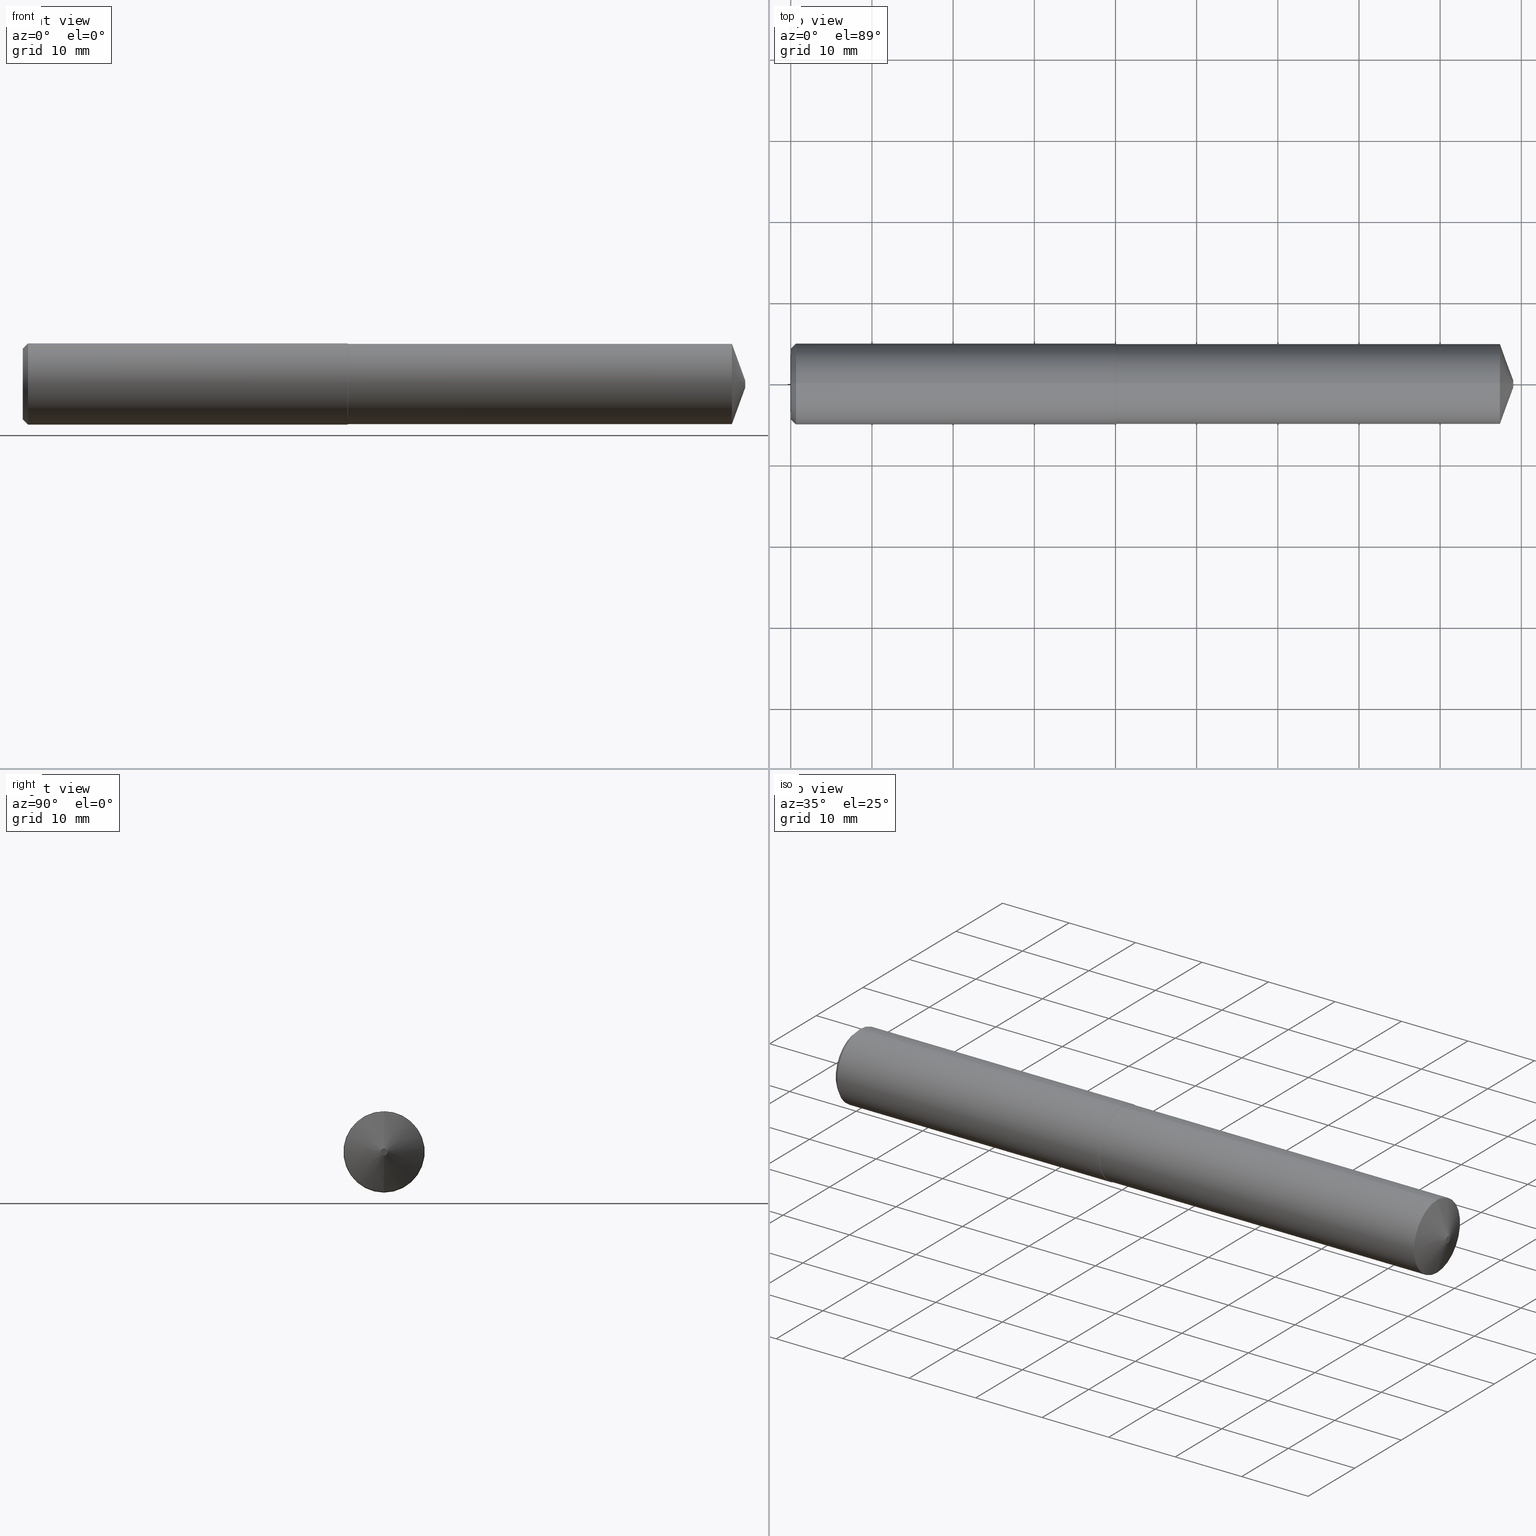
[diagram: canonical four-view strip — front | top / right | iso, engineering-drawing reading convention]
A machine part, canonical four-view strip (front | top / right | iso — engineering-drawing reading convention). The complete STEP part file that produces these views, byte-faithful:
ISO-10303-21;
HEADER;
FILE_DESCRIPTION (( 'STEP AP203' ),
    '1' );
FILE_NAME ('407004-DFX3-389A.STEP',
    '2024-10-02T19:29:08',
    ( '' ),
    ( '' ),
    'SwSTEP 2.0',
    'SolidWorks 2024',
    '' );
FILE_SCHEMA (( 'CONFIG_CONTROL_DESIGN' ));
ENDSEC;

DATA;
#1 = EDGE_CURVE ( 'NONE', #321, #27, #358, .T. ) ;
#2 = ORIENTED_EDGE ( 'NONE', *, *, #1, .F. ) ;
#3 = AXIS2_PLACEMENT_3D ( 'NONE', #169, #348, #143 ) ;
#4 = ORIENTED_EDGE ( 'NONE', *, *, #150, .T. ) ;
#5 = ORIENTED_EDGE ( 'NONE', *, *, #82, .T. ) ;
#6 = ADVANCED_FACE ( 'NONE', ( #39 ), #352, .T. ) ;
#7 = COORDINATED_UNIVERSAL_TIME_OFFSET ( 8, 0, .BEHIND. ) ;
#8 = VERTEX_POINT ( 'NONE', #329 ) ;
#9 = CC_DESIGN_PERSON_AND_ORGANIZATION_ASSIGNMENT ( #106, #277, ( #228 ) ) ;
#10 = LOCAL_TIME ( 12, 29, 8.000000000000000000, #333 ) ;
#11 = UNCERTAINTY_MEASURE_WITH_UNIT (LENGTH_MEASURE( 1.000000000000000082E-05 ), #231, 'distance_accuracy_value', 'NONE');
#12 = DIRECTION ( 'NONE',  ( 1.000000000000000000, -0.000000000000000000, -0.000000000000000000 ) ) ;
#13 = DATE_TIME_ROLE ( 'creation_date' ) ;
#14 = DIRECTION ( 'NONE',  ( -1.000000000000000000, 0.000000000000000000, 0.000000000000000000 ) ) ;
#15 = DATE_AND_TIME ( #71, #198 ) ;
#16 = LINE ( 'NONE', #17, #334 ) ;
#17 = CARTESIAN_POINT ( 'NONE',  ( -0.03808593750000075634, 2.410722045565656686E-17, 0.1968503937007874682 ) ) ;
#18 = CARTESIAN_POINT ( 'NONE',  ( -0.03808593750000075634, 0.000000000000000000, 0.000000000000000000 ) ) ;
#19 = CC_DESIGN_PERSON_AND_ORGANIZATION_ASSIGNMENT ( #330, #295, ( #251 ) ) ;
#20 = CARTESIAN_POINT ( 'NONE',  ( 0.02500000000000000139, 0.000000000000000000, -0.1968503937007873850 ) ) ;
#21 = AXIS2_PLACEMENT_3D ( 'NONE', #269, #125, #213 ) ;
#22 = AXIS2_PLACEMENT_3D ( 'NONE', #18, #196, #310 ) ;
#23 = VERTEX_POINT ( 'NONE', #323 ) ;
#24 = DIRECTION ( 'NONE',  ( 0.000000000000000000, 0.000000000000000000, -1.000000000000000000 ) ) ;
#25 = DIRECTION ( 'NONE',  ( -0.3420201433256665480, 1.150791560227851256E-16, -0.9396926207859092051 ) ) ;
#26 = EDGE_CURVE ( 'NONE', #291, #27, #311, .T. ) ;
#27 = VERTEX_POINT ( 'NONE', #73 ) ;
#28 = DIRECTION ( 'NONE',  ( 0.7071067811865474617, 8.659560562354934091E-17, 0.7071067811865475727 ) ) ;
#29 = ORIENTED_EDGE ( 'NONE', *, *, #102, .F. ) ;
#30 = APPROVAL_PERSON_ORGANIZATION ( #31, #216, #223 ) ;
#31 = PERSON_AND_ORGANIZATION ( #65, #36 ) ;
#32 = EDGE_LOOP ( 'NONE', ( #188, #378, #5, #170 ) ) ;
#33 = EDGE_CURVE ( 'NONE', #205, #8, #122, .T. ) ;
#34 = ORIENTED_EDGE ( 'NONE', *, *, #45, .T. ) ;
#35 = ORIENTED_EDGE ( 'NONE', *, *, #187, .T. ) ;
#36 = ORGANIZATION ( 'UNSPECIFIED', 'UNSPECIFIED', '' ) ;
#37 = ORIENTED_EDGE ( 'NONE', *, *, #338, .F. ) ;
#38 = MECHANICAL_CONTEXT ( 'NONE', #237, 'mechanical' ) ;
#39 = FACE_OUTER_BOUND ( 'NONE', #298, .T. ) ;
#40 = APPROVAL ( #99, 'UNSPECIFIED' ) ;
#41 = CARTESIAN_POINT ( 'NONE',  ( 0.000000000000000000, 0.000000000000000000, 0.000000000000000000 ) ) ;
#42 = APPROVAL_DATE_TIME ( #336, #216 ) ;
#43 = SECURITY_CLASSIFICATION ( '', '', #191 ) ;
#44 = DIRECTION ( 'NONE',  ( 0.000000000000000000, 0.000000000000000000, -1.000000000000000000 ) ) ;
#45 = EDGE_CURVE ( 'NONE', #8, #89, #69, .T. ) ;
#46 = CARTESIAN_POINT ( 'NONE',  ( 0.02500000000000000139, 0.000000000000000000, -0.1968503937007873850 ) ) ;
#47 = DIRECTION ( 'NONE',  ( 1.000000000000000000, -0.000000000000000000, -0.000000000000000000 ) ) ;
#48 = APPROVAL_PERSON_ORGANIZATION ( #180, #253, #215 ) ;
#49 = CARTESIAN_POINT ( 'NONE',  ( 3.503937007874015741, 1.298125607096199845E-17, -0.01750000000000043535 ) ) ;
#50 = EDGE_CURVE ( 'NONE', #96, #27, #190, .T. ) ;
#51 = LINE ( 'NONE', #344, #166 ) ;
#52 = DIRECTION ( 'NONE',  ( 1.000000000000000000, 0.000000000000000000, 0.000000000000000000 ) ) ;
#53 = ORIENTED_EDGE ( 'NONE', *, *, #150, .F. ) ;
#54 = CARTESIAN_POINT ( 'NONE',  ( 1.574803149606299302, 0.000000000000000000, 0.1968503937007875793 ) ) ;
#55 = CIRCLE ( 'NONE', #267, 0.1968503937007875793 ) ;
#56 = DIRECTION ( 'NONE',  ( 0.000000000000000000, 0.000000000000000000, -1.000000000000000000 ) ) ;
#57 = ORIENTED_EDGE ( 'NONE', *, *, #50, .T. ) ;
#58 = CARTESIAN_POINT ( 'NONE',  ( 3.503937007874015741, 0.000000000000000000, 0.000000000000000000 ) ) ;
#59 = VERTEX_POINT ( 'NONE', #303 ) ;
#60 = VECTOR ( 'NONE', #164, 39.37007874015748143 ) ;
#61 = EDGE_CURVE ( 'NONE', #23, #59, #208, .T. ) ;
#62 = LOCAL_TIME ( 12, 29, 8.000000000000000000, #78 ) ;
#63 = ORIENTED_EDGE ( 'NONE', *, *, #50, .F. ) ;
#64 = CC_DESIGN_DATE_AND_TIME_ASSIGNMENT ( #327, #239, ( #43 ) ) ;
#65 = PERSON ( 'UNSPECIFIED', 'UNSPECIFIED', 'UNSPECIFIED', ('UNSPECIFIED'), ('UNSPECIFIED'), ('UNSPECIFIED') ) ;
#66 = DIRECTION ( 'NONE',  ( 1.000000000000000000, -0.000000000000000000, -0.000000000000000000 ) ) ;
#67 = PRODUCT_DEFINITION_SHAPE ( 'NONE', 'NONE',  #228 ) ;
#68 = DIRECTION ( 'NONE',  ( 1.000000000000000000, -0.000000000000000000, -0.000000000000000000 ) ) ;
#69 = CIRCLE ( 'NONE', #21, 0.1945000000000004503 ) ;
#70 =( GEOMETRIC_REPRESENTATION_CONTEXT ( 3 ) GLOBAL_UNCERTAINTY_ASSIGNED_CONTEXT ( ( #11 ) ) GLOBAL_UNIT_ASSIGNED_CONTEXT ( ( #231, #285, #138 ) ) REPRESENTATION_CONTEXT ( 'NONE', 'WORKASPACE' ) );
#71 = CALENDAR_DATE ( 2024, 2, 10 ) ;
#72 = CARTESIAN_POINT ( 'NONE',  ( 1.574803149606299302, 0.000000000000000000, 0.000000000000000000 ) ) ;
#73 = CARTESIAN_POINT ( 'NONE',  ( 1.574803149606299302, 2.410722045565658227E-17, -0.1968503937007875793 ) ) ;
#74 = APPROVAL_STATUS ( 'not_yet_approved' ) ;
#75 = DIRECTION ( 'NONE',  ( 0.000000000000000000, 0.000000000000000000, -1.000000000000000000 ) ) ;
#76 = EDGE_CURVE ( 'NONE', #205, #261, #151, .T. ) ;
#77 = AXIS2_PLACEMENT_3D ( 'NONE', #72, #266, #100 ) ;
#78 = COORDINATED_UNIVERSAL_TIME_OFFSET ( 8, 0, .BEHIND. ) ;
#79 = APPLICATION_CONTEXT ( 'configuration controlled 3d designs of mechanical parts and assemblies' ) ;
#80 = DIRECTION ( 'NONE',  ( 0.7071067811865474617, 0.000000000000000000, -0.7071067811865475727 ) ) ;
#81 = CARTESIAN_POINT ( 'NONE',  ( 0.02500000000000000139, 0.000000000000000000, 0.000000000000000000 ) ) ;
#82 = EDGE_CURVE ( 'NONE', #23, #321, #225, .T. ) ;
#83 = DIRECTION ( 'NONE',  ( 0.000000000000000000, 0.000000000000000000, -1.000000000000000000 ) ) ;
#84 = AXIS2_PLACEMENT_3D ( 'NONE', #290, #258, #115 ) ;
#85 = FACE_OUTER_BOUND ( 'NONE', #259, .T. ) ;
#86 = CARTESIAN_POINT ( 'NONE',  ( 0.000000000000000000, 0.000000000000000000, 0.000000000000000000 ) ) ;
#87 = ORIENTED_EDGE ( 'NONE', *, *, #33, .T. ) ;
#88 = FACE_OUTER_BOUND ( 'NONE', #349, .T. ) ;
#89 = VERTEX_POINT ( 'NONE', #339 ) ;
#90 = CYLINDRICAL_SURFACE ( 'NONE', #84, 0.1945000000000003115 ) ;
#91 = AXIS2_PLACEMENT_3D ( 'NONE', #279, #12, #131 ) ;
#92 = CARTESIAN_POINT ( 'NONE',  ( 1.577153543307086903, 0.000000000000000000, 0.1945000000000001728 ) ) ;
#93 = EDGE_CURVE ( 'NONE', #89, #8, #179, .T. ) ;
#94 = ORIENTED_EDGE ( 'NONE', *, *, #194, .T. ) ;
#95 = ORIENTED_EDGE ( 'NONE', *, *, #354, .T. ) ;
#96 = VERTEX_POINT ( 'NONE', #193 ) ;
#97 = DIRECTION ( 'NONE',  ( -0.3420201433256665480, 0.000000000000000000, 0.9396926207859092051 ) ) ;
#98 = VECTOR ( 'NONE', #97, 39.37007874015748143 ) ;
#99 = APPROVAL_STATUS ( 'not_yet_approved' ) ;
#100 = DIRECTION ( 'NONE',  ( 0.000000000000000000, 0.000000000000000000, -1.000000000000000000 ) ) ;
#101 = CALENDAR_DATE ( 2024, 2, 10 ) ;
#102 = EDGE_CURVE ( 'NONE', #96, #89, #249, .T. ) ;
#103 = CARTESIAN_POINT ( 'NONE',  ( 1.577153543307086903, 0.000000000000000000, 0.000000000000000000 ) ) ;
#104 = PERSON_AND_ORGANIZATION ( #65, #36 ) ;
#105 = CARTESIAN_POINT ( 'NONE',  ( -0.03808593750000075634, 0.000000000000000000, -0.1945000000000003115 ) ) ;
#106 = PERSON_AND_ORGANIZATION ( #65, #36 ) ;
#107 = CARTESIAN_POINT ( 'NONE',  ( 3.061616997868404646E-19, 0.1718503937007873628, 0.000000000000000000 ) ) ;
#108 = CYLINDRICAL_SURFACE ( 'NONE', #22, 0.1968503937007874682 ) ;
#109 = CARTESIAN_POINT ( 'NONE',  ( 0.02500000000000000139, 0.000000000000000000, 0.000000000000000000 ) ) ;
#110 = VECTOR ( 'NONE', #185, 39.37007874015748143 ) ;
#111 = CONICAL_SURFACE ( 'NONE', #128, 0.01750000000000043535, 1.221730476396033049 ) ;
#112 = APPLICATION_PROTOCOL_DEFINITION ( 'international standard', 'config_control_design', 1994, #237 ) ;
#113 = ORIENTED_EDGE ( 'NONE', *, *, #93, .F. ) ;
#114 = ORIENTED_EDGE ( 'NONE', *, *, #250, .T. ) ;
#115 = DIRECTION ( 'NONE',  ( 0.000000000000000000, 0.000000000000000000, -1.000000000000000000 ) ) ;
#116 = AXIS2_PLACEMENT_3D ( 'NONE', #245, #218, #362 ) ;
#117 = APPROVAL_PERSON_ORGANIZATION ( #244, #40, #246 ) ;
#118 = ADVANCED_FACE ( 'NONE', ( #331 ), #281, .T. ) ;
#119 = LENGTH_MEASURE_WITH_UNIT ( LENGTH_MEASURE( 0.02539999999999999897 ), #140 );
#120 = EDGE_LOOP ( 'NONE', ( #114, #264, #113, #29 ) ) ;
#121 = AXIS2_PLACEMENT_3D ( 'NONE', #81, #247, #75 ) ;
#122 = LINE ( 'NONE', #355, #98 ) ;
#123 = CIRCLE ( 'NONE', #325, 0.1968503937007873850 ) ;
#124 = ORIENTED_EDGE ( 'NONE', *, *, #157, .T. ) ;
#125 = DIRECTION ( 'NONE',  ( 1.000000000000000000, -0.000000000000000000, -0.000000000000000000 ) ) ;
#126 = PERSON_AND_ORGANIZATION_ROLE ( 'classification_officer' ) ;
#127 = ORIENTED_EDGE ( 'NONE', *, *, #102, .T. ) ;
#128 = AXIS2_PLACEMENT_3D ( 'NONE', #58, #142, #177 ) ;
#129 = DIRECTION ( 'NONE',  ( 1.000000000000000000, 0.000000000000000000, -0.000000000000000000 ) ) ;
#130 = APPROVAL_STATUS ( 'not_yet_approved' ) ;
#131 = DIRECTION ( 'NONE',  ( 0.000000000000000000, 0.000000000000000000, -1.000000000000000000 ) ) ;
#132 = COORDINATED_UNIVERSAL_TIME_OFFSET ( 8, 0, .BEHIND. ) ;
#133 = DIRECTION ( 'NONE',  ( 1.000000000000000000, -0.000000000000000000, -0.000000000000000000 ) ) ;
#134 = CIRCLE ( 'NONE', #91, 0.1945000000000001728 ) ;
#135 = AXIS2_PLACEMENT_3D ( 'NONE', #252, #163, #199 ) ;
#136 = FACE_OUTER_BOUND ( 'NONE', #296, .T. ) ;
#137 = DIRECTION ( 'NONE',  ( 1.000000000000000000, -0.000000000000000000, -0.000000000000000000 ) ) ;
#138 =( NAMED_UNIT ( * ) SI_UNIT ( $, .STERADIAN. ) SOLID_ANGLE_UNIT ( ) );
#139 = ADVANCED_FACE ( 'NONE', ( #308 ), #274, .T. ) ;
#140 =( LENGTH_UNIT ( ) NAMED_UNIT ( * ) SI_UNIT ( $, .METRE. ) );
#141 = ORIENTED_EDGE ( 'NONE', *, *, #61, .F. ) ;
#142 = DIRECTION ( 'NONE',  ( -1.000000000000000000, 0.000000000000000000, 0.000000000000000000 ) ) ;
#143 = DIRECTION ( 'NONE',  ( 0.000000000000000000, 0.000000000000000000, -1.000000000000000000 ) ) ;
#144 = ORIENTED_EDGE ( 'NONE', *, *, #270, .F. ) ;
#145 = EDGE_CURVE ( 'NONE', #261, #205, #227, .T. ) ;
#146 = CARTESIAN_POINT ( 'NONE',  ( 1.577153543307086903, 2.381938024341605034E-17, 0.1945000000000001728 ) ) ;
#147 = ORIENTED_EDGE ( 'NONE', *, *, #278, .F. ) ;
#148 = CALENDAR_DATE ( 2024, 2, 10 ) ;
#149 = ORIENTED_EDGE ( 'NONE', *, *, #250, .F. ) ;
#150 = EDGE_CURVE ( 'NONE', #321, #217, #287, .T. ) ;
#151 = CIRCLE ( 'NONE', #341, 0.01750000000000043535 ) ;
#152 = ORIENTED_EDGE ( 'NONE', *, *, #194, .F. ) ;
#153 = VECTOR ( 'NONE', #175, 39.37007874015748143 ) ;
#154 = DIRECTION ( 'NONE',  ( 0.000000000000000000, 0.000000000000000000, -1.000000000000000000 ) ) ;
#155 = APPLICATION_PROTOCOL_DEFINITION ( 'international standard', 'config_control_design', 1994, #79 ) ;
#156 = DIRECTION ( 'NONE',  ( -0.7071067811865627828, 8.659560562354743039E-17, -0.7071067811865320296 ) ) ;
#157 = EDGE_CURVE ( 'NONE', #217, #291, #16, .T. ) ;
#158 = DIRECTION ( 'NONE',  ( 0.000000000000000000, 0.000000000000000000, -1.000000000000000000 ) ) ;
#159 = AXIS2_PLACEMENT_3D ( 'NONE', #360, #129, #335 ) ;
#160 = CONICAL_SURFACE ( 'NONE', #316, 0.1968503937007873850, 0.7853981633974483900 ) ;
#161 = CC_DESIGN_PERSON_AND_ORGANIZATION_ASSIGNMENT ( #189, #271, ( #312 ) ) ;
#162 = CC_DESIGN_SECURITY_CLASSIFICATION ( #43, ( #312 ) ) ;
#163 = DIRECTION ( 'NONE',  ( -1.000000000000000000, 0.000000000000000000, 0.000000000000000000 ) ) ;
#164 = DIRECTION ( 'NONE',  ( 1.000000000000000000, -0.000000000000000000, -0.000000000000000000 ) ) ;
#165 = CARTESIAN_POINT ( 'NONE',  ( 1.574803149606299302, 0.000000000000000000, 0.000000000000000000 ) ) ;
#166 = VECTOR ( 'NONE', #25, 39.37007874015748143 ) ;
#167 = FACE_OUTER_BOUND ( 'NONE', #376, .T. ) ;
#168 = CARTESIAN_POINT ( 'NONE',  ( 0.02500000000000000139, 2.410722045565656070E-17, 0.1968503937007873850 ) ) ;
#169 = CARTESIAN_POINT ( 'NONE',  ( -0.03808593750000075634, 0.000000000000000000, 0.000000000000000000 ) ) ;
#170 = ORIENTED_EDGE ( 'NONE', *, *, #262, .F. ) ;
#171 = AXIS2_PLACEMENT_3D ( 'NONE', #103, #137, #44 ) ;
#172 = VECTOR ( 'NONE', #28, 39.37007874015748143 ) ;
#173 = LINE ( 'NONE', #92, #305 ) ;
#174 = MANIFOLD_SOLID_BREP ( 'Body', #365 ) ;
#175 = DIRECTION ( 'NONE',  ( 1.000000000000000000, -0.000000000000000000, -0.000000000000000000 ) ) ;
#176 = DIMENSIONAL_EXPONENTS ( 1.000000000000000000, 0.000000000000000000, 0.000000000000000000, 0.000000000000000000, 0.000000000000000000, 0.000000000000000000, 0.000000000000000000 ) ;
#177 = DIRECTION ( 'NONE',  ( 0.000000000000000000, 0.000000000000000000, 1.000000000000000000 ) ) ;
#178 = ORIENTED_EDGE ( 'NONE', *, *, #26, .T. ) ;
#179 = CIRCLE ( 'NONE', #116, 0.1945000000000004503 ) ;
#180 = PERSON_AND_ORGANIZATION ( #65, #36 ) ;
#181 = EDGE_LOOP ( 'NONE', ( #141, #300 ) ) ;
#182 = ORIENTED_EDGE ( 'NONE', *, *, #76, .T. ) ;
#183 = ADVANCED_FACE ( 'NONE', ( #167 ), #313, .T. ) ;
#184 = ORIENTED_EDGE ( 'NONE', *, *, #157, .F. ) ;
#185 = DIRECTION ( 'NONE',  ( 1.000000000000000000, -0.000000000000000000, -0.000000000000000000 ) ) ;
#186 = AXIS2_PLACEMENT_3D ( 'NONE', #372, #345, #56 ) ;
#187 = EDGE_CURVE ( 'NONE', #356, #96, #203, .T. ) ;
#188 = ORIENTED_EDGE ( 'NONE', *, *, #354, .F. ) ;
#189 = PERSON_AND_ORGANIZATION ( #65, #36 ) ;
#190 = LINE ( 'NONE', #324, #240 ) ;
#191 = SECURITY_CLASSIFICATION_LEVEL ( 'unclassified' ) ;
#192 = DIRECTION ( 'NONE',  ( 0.000000000000000000, 0.000000000000000000, 1.000000000000000000 ) ) ;
#193 = CARTESIAN_POINT ( 'NONE',  ( 1.577153543307086903, 0.000000000000000000, -0.1945000000000001728 ) ) ;
#194 = EDGE_CURVE ( 'NONE', #27, #291, #55, .T. ) ;
#195 = DIRECTION ( 'NONE',  ( -1.000000000000000000, 0.000000000000000000, 0.000000000000000000 ) ) ;
#196 = DIRECTION ( 'NONE',  ( 1.000000000000000000, -0.000000000000000000, -0.000000000000000000 ) ) ;
#197 = AXIS2_PLACEMENT_3D ( 'NONE', #107, #14, #220 ) ;
#198 = LOCAL_TIME ( 12, 29, 8.000000000000000000, #7 ) ;
#199 = DIRECTION ( 'NONE',  ( 0.000000000000000000, 0.000000000000000000, 1.000000000000000000 ) ) ;
#200 = ADVANCED_FACE ( 'NONE', ( #85 ), #248, .T. ) ;
#201 = DIRECTION ( 'NONE',  ( 0.000000000000000000, 0.000000000000000000, 1.000000000000000000 ) ) ;
#202 = CYLINDRICAL_SURFACE ( 'NONE', #3, 0.1968503937007874682 ) ;
#203 = CIRCLE ( 'NONE', #171, 0.1945000000000001728 ) ;
#204 = AXIS2_PLACEMENT_3D ( 'NONE', #86, #201, #52 ) ;
#205 = VERTEX_POINT ( 'NONE', #282 ) ;
#206 = CARTESIAN_POINT ( 'NONE',  ( -0.03808593750000075634, 2.381938024341605650E-17, 0.1945000000000003115 ) ) ;
#207 = CYLINDRICAL_SURFACE ( 'NONE', #186, 0.1945000000000003115 ) ;
#208 = CIRCLE ( 'NONE', #357, 0.1718503937007873628 ) ;
#209 = CC_DESIGN_APPROVAL ( #40, ( #228 ) ) ;
#210 = ORIENTED_EDGE ( 'NONE', *, *, #187, .F. ) ;
#211 = EDGE_LOOP ( 'NONE', ( #238, #241, #351, #212 ) ) ;
#212 = ORIENTED_EDGE ( 'NONE', *, *, #33, .F. ) ;
#213 = DIRECTION ( 'NONE',  ( 0.000000000000000000, 0.000000000000000000, -1.000000000000000000 ) ) ;
#214 = AXIS2_PLACEMENT_3D ( 'NONE', #370, #230, #24 ) ;
#215 = APPROVAL_ROLE ( '' ) ;
#216 = APPROVAL ( #74, 'UNSPECIFIED' ) ;
#217 = VERTEX_POINT ( 'NONE', #168 ) ;
#218 = DIRECTION ( 'NONE',  ( 1.000000000000000000, -0.000000000000000000, -0.000000000000000000 ) ) ;
#219 = CALENDAR_DATE ( 2024, 2, 10 ) ;
#220 = DIRECTION ( 'NONE',  ( 0.000000000000000000, 0.000000000000000000, 1.000000000000000000 ) ) ;
#221 = AXIS2_PLACEMENT_3D ( 'NONE', #309, #195, #284 ) ;
#222 = ADVANCED_FACE ( 'NONE', ( #243 ), #275, .T. ) ;
#223 = APPROVAL_ROLE ( '' ) ;
#224 = DIRECTION ( 'NONE',  ( 1.000000000000000000, -0.000000000000000000, -0.000000000000000000 ) ) ;
#225 = LINE ( 'NONE', #46, #283 ) ;
#226 = DIRECTION ( 'NONE',  ( 1.000000000000000000, -0.000000000000000000, -0.000000000000000000 ) ) ;
#227 = CIRCLE ( 'NONE', #320, 0.01750000000000043535 ) ;
#228 = PRODUCT_DEFINITION ( 'UNKNOWN', '', #312, #322 ) ;
#229 = FACE_OUTER_BOUND ( 'NONE', #32, .T. ) ;
#230 = DIRECTION ( 'NONE',  ( 1.000000000000000000, -0.000000000000000000, -0.000000000000000000 ) ) ;
#231 =( CONVERSION_BASED_UNIT ( 'INCH', #119 ) LENGTH_UNIT ( ) NAMED_UNIT ( #176 ) );
#232 = CARTESIAN_POINT ( 'NONE',  ( 0.02500000000000000139, 0.000000000000000000, 0.000000000000000000 ) ) ;
#233 = AXIS2_PLACEMENT_3D ( 'NONE', #232, #68, #154 ) ;
#234 = CC_DESIGN_PERSON_AND_ORGANIZATION_ASSIGNMENT ( #364, #126, ( #43 ) ) ;
#235 = CARTESIAN_POINT ( 'NONE',  ( 3.503937007874015741, 0.000000000000000000, 0.000000000000000000 ) ) ;
#236 = ORIENTED_EDGE ( 'NONE', *, *, #76, .F. ) ;
#237 = APPLICATION_CONTEXT ( 'configuration controlled 3d designs of mechanical parts and assemblies' ) ;
#238 = ORIENTED_EDGE ( 'NONE', *, *, #145, .F. ) ;
#239 = DATE_TIME_ROLE ( 'classification_date' ) ;
#240 = VECTOR ( 'NONE', #156, 39.37007874015748854 ) ;
#241 = ORIENTED_EDGE ( 'NONE', *, *, #270, .T. ) ;
#242 = CC_DESIGN_APPROVAL ( #253, ( #312 ) ) ;
#243 = FACE_OUTER_BOUND ( 'NONE', #211, .T. ) ;
#244 = PERSON_AND_ORGANIZATION ( #65, #36 ) ;
#245 = CARTESIAN_POINT ( 'NONE',  ( 3.439514276408898397, 0.000000000000000000, 0.000000000000000000 ) ) ;
#246 = APPROVAL_ROLE ( '' ) ;
#247 = DIRECTION ( 'NONE',  ( 1.000000000000000000, -0.000000000000000000, -0.000000000000000000 ) ) ;
#248 = CONICAL_SURFACE ( 'NONE', #299, 0.1945000000000001728, 0.7853981633974265186 ) ;
#249 = LINE ( 'NONE', #105, #60 ) ;
#250 = EDGE_CURVE ( 'NONE', #96, #356, #134, .T. ) ;
#251 = PRODUCT ( '407004-DFX3-389A', '407004-DFX3-389A', '', ( #38 ) ) ;
#252 = CARTESIAN_POINT ( 'NONE',  ( 3.503937007874015741, 0.000000000000000000, 0.000000000000000000 ) ) ;
#253 = APPROVAL ( #130, 'UNSPECIFIED' ) ;
#254 = CARTESIAN_POINT ( 'NONE',  ( 0.02500000000000000139, 2.410722045565655454E-17, 0.1968503937007873850 ) ) ;
#255 = CC_DESIGN_APPROVAL ( #216, ( #43 ) ) ;
#256 = LINE ( 'NONE', #254, #172 ) ;
#257 = ADVANCED_FACE ( 'NONE', ( #136 ), #108, .T. ) ;
#258 = DIRECTION ( 'NONE',  ( 1.000000000000000000, -0.000000000000000000, -0.000000000000000000 ) ) ;
#259 = EDGE_LOOP ( 'NONE', ( #63, #210, #272, #178 ) ) ;
#260 = LOCAL_TIME ( 12, 29, 8.000000000000000000, #132 ) ;
#261 = VERTEX_POINT ( 'NONE', #49 ) ;
#262 = EDGE_CURVE ( 'NONE', #217, #321, #123, .T. ) ;
#263 = APPROVAL_DATE_TIME ( #301, #253 ) ;
#264 = ORIENTED_EDGE ( 'NONE', *, *, #278, .T. ) ;
#265 = PRODUCT_RELATED_PRODUCT_CATEGORY ( 'detail', '', ( #251 ) ) ;
#266 = DIRECTION ( 'NONE',  ( 1.000000000000000000, -0.000000000000000000, -0.000000000000000000 ) ) ;
#267 = AXIS2_PLACEMENT_3D ( 'NONE', #165, #133, #368 ) ;
#268 = ORIENTED_EDGE ( 'NONE', *, *, #45, .F. ) ;
#269 = CARTESIAN_POINT ( 'NONE',  ( 3.439514276408898397, 0.000000000000000000, 0.000000000000000000 ) ) ;
#270 = EDGE_CURVE ( 'NONE', #261, #89, #51, .T. ) ;
#271 = PERSON_AND_ORGANIZATION_ROLE ( 'design_supplier' ) ;
#272 = ORIENTED_EDGE ( 'NONE', *, *, #338, .T. ) ;
#273 = PERSON_AND_ORGANIZATION_ROLE ( 'creator' ) ;
#274 = CONICAL_SURFACE ( 'NONE', #221, 0.1945000000000001728, 0.7853981633974265186 ) ;
#275 = CONICAL_SURFACE ( 'NONE', #135, 0.01750000000000043535, 1.221730476396033049 ) ;
#276 = EDGE_LOOP ( 'NONE', ( #144, #236, #87, #34 ) ) ;
#277 = PERSON_AND_ORGANIZATION_ROLE ( 'creator' ) ;
#278 = EDGE_CURVE ( 'NONE', #356, #8, #350, .T. ) ;
#279 = CARTESIAN_POINT ( 'NONE',  ( 1.577153543307086903, 0.000000000000000000, 0.000000000000000000 ) ) ;
#280 = COORDINATED_UNIVERSAL_TIME_OFFSET ( 8, 0, .BEHIND. ) ;
#281 = PLANE ( 'NONE',  #197 ) ;
#282 = CARTESIAN_POINT ( 'NONE',  ( 3.503937007874015741, 0.000000000000000000, 0.01750000000000043535 ) ) ;
#283 = VECTOR ( 'NONE', #80, 39.37007874015748143 ) ;
#284 = DIRECTION ( 'NONE',  ( 0.000000000000000000, 0.000000000000000000, 1.000000000000000000 ) ) ;
#285 =( NAMED_UNIT ( * ) PLANE_ANGLE_UNIT ( ) SI_UNIT ( $, .RADIAN. ) );
#286 = ORIENTED_EDGE ( 'NONE', *, *, #26, .F. ) ;
#287 = CIRCLE ( 'NONE', #121, 0.1968503937007873850 ) ;
#288 = ADVANCED_FACE ( 'NONE', ( #88 ), #202, .T. ) ;
#289 = FACE_OUTER_BOUND ( 'NONE', #276, .T. ) ;
#290 = CARTESIAN_POINT ( 'NONE',  ( -0.03808593750000075634, 0.000000000000000000, 0.000000000000000000 ) ) ;
#291 = VERTEX_POINT ( 'NONE', #54 ) ;
#292 = DIRECTION ( 'NONE',  ( 1.000000000000000000, -0.000000000000000000, -0.000000000000000000 ) ) ;
#293 = EDGE_LOOP ( 'NONE', ( #149, #57, #94, #37 ) ) ;
#294 = CIRCLE ( 'NONE', #214, 0.1718503937007873628 ) ;
#295 = PERSON_AND_ORGANIZATION_ROLE ( 'design_owner' ) ;
#296 = EDGE_LOOP ( 'NONE', ( #184, #353, #297, #286 ) ) ;
#297 = ORIENTED_EDGE ( 'NONE', *, *, #1, .T. ) ;
#298 = EDGE_LOOP ( 'NONE', ( #373, #95, #53, #343 ) ) ;
#299 = AXIS2_PLACEMENT_3D ( 'NONE', #366, #367, #192 ) ;
#300 = ORIENTED_EDGE ( 'NONE', *, *, #328, .F. ) ;
#301 = DATE_AND_TIME ( #148, #10 ) ;
#302 = CARTESIAN_POINT ( 'NONE',  ( -0.03808593750000075634, 0.000000000000000000, -0.1968503937007874682 ) ) ;
#303 = CARTESIAN_POINT ( 'NONE',  ( 0.000000000000000000, 2.257641195672236334E-17, 0.1718503937007873628 ) ) ;
#304 = APPROVAL_DATE_TIME ( #361, #40 ) ;
#305 = VECTOR ( 'NONE', #319, 39.37007874015748854 ) ;
#306 = DIRECTION ( 'NONE',  ( 0.000000000000000000, 0.000000000000000000, -1.000000000000000000 ) ) ;
#307 = CALENDAR_DATE ( 2024, 2, 10 ) ;
#308 = FACE_OUTER_BOUND ( 'NONE', #293, .T. ) ;
#309 = CARTESIAN_POINT ( 'NONE',  ( 1.577153543307086903, 0.000000000000000000, 0.000000000000000000 ) ) ;
#310 = DIRECTION ( 'NONE',  ( 0.000000000000000000, 0.000000000000000000, -1.000000000000000000 ) ) ;
#311 = CIRCLE ( 'NONE', #77, 0.1968503937007875793 ) ;
#312 = PRODUCT_DEFINITION_FORMATION_WITH_SPECIFIED_SOURCE ( 'ANY', '', #251, .NOT_KNOWN. ) ;
#313 = PLANE ( 'NONE',  #159 ) ;
#314 = ADVANCED_FACE ( 'NONE', ( #315 ), #207, .T. ) ;
#315 = FACE_OUTER_BOUND ( 'NONE', #371, .T. ) ;
#316 = AXIS2_PLACEMENT_3D ( 'NONE', #375, #292, #369 ) ;
#317 = FACE_OUTER_BOUND ( 'NONE', #120, .T. ) ;
#318 = ADVANCED_FACE ( 'NONE', ( #317 ), #90, .T. ) ;
#319 = DIRECTION ( 'NONE',  ( -0.7071067811865627828, 0.000000000000000000, 0.7071067811865320296 ) ) ;
#320 = AXIS2_PLACEMENT_3D ( 'NONE', #337, #224, #306 ) ;
#321 = VERTEX_POINT ( 'NONE', #20 ) ;
#322 = DESIGN_CONTEXT ( 'detailed design', #79, 'design' ) ;
#323 = CARTESIAN_POINT ( 'NONE',  ( 0.000000000000000000, 0.000000000000000000, -0.1718503937007873628 ) ) ;
#324 = CARTESIAN_POINT ( 'NONE',  ( 1.577153543307086903, 2.381938024341604109E-17, -0.1945000000000001728 ) ) ;
#325 = AXIS2_PLACEMENT_3D ( 'NONE', #109, #226, #340 ) ;
#326 = DIRECTION ( 'NONE',  ( 1.000000000000000000, -0.000000000000000000, -0.000000000000000000 ) ) ;
#327 = DATE_AND_TIME ( #219, #260 ) ;
#328 = EDGE_CURVE ( 'NONE', #59, #23, #294, .T. ) ;
#329 = CARTESIAN_POINT ( 'NONE',  ( 3.439514276408898397, 0.000000000000000000, 0.1945000000000004781 ) ) ;
#330 = PERSON_AND_ORGANIZATION ( #65, #36 ) ;
#331 = FACE_OUTER_BOUND ( 'NONE', #181, .T. ) ;
#332 = CC_DESIGN_PERSON_AND_ORGANIZATION_ASSIGNMENT ( #104, #273, ( #312 ) ) ;
#333 = COORDINATED_UNIVERSAL_TIME_OFFSET ( 8, 0, .BEHIND. ) ;
#334 = VECTOR ( 'NONE', #47, 39.37007874015748143 ) ;
#335 = DIRECTION ( 'NONE',  ( -0.000000000000000000, 0.000000000000000000, -1.000000000000000000 ) ) ;
#336 = DATE_AND_TIME ( #101, #62 ) ;
#337 = CARTESIAN_POINT ( 'NONE',  ( 3.503937007874015741, 0.000000000000000000, 0.000000000000000000 ) ) ;
#338 = EDGE_CURVE ( 'NONE', #356, #291, #173, .T. ) ;
#339 = CARTESIAN_POINT ( 'NONE',  ( 3.439514276408898397, 2.381938024341608115E-17, -0.1945000000000004781 ) ) ;
#340 = DIRECTION ( 'NONE',  ( 0.000000000000000000, 0.000000000000000000, -1.000000000000000000 ) ) ;
#341 = AXIS2_PLACEMENT_3D ( 'NONE', #235, #66, #83 ) ;
#342 = ADVANCED_FACE ( 'NONE', ( #289 ), #111, .T. ) ;
#343 = ORIENTED_EDGE ( 'NONE', *, *, #82, .F. ) ;
#344 = CARTESIAN_POINT ( 'NONE',  ( 3.503937007874015741, 2.143131898507921145E-18, -0.01750000000000043535 ) ) ;
#345 = DIRECTION ( 'NONE',  ( 1.000000000000000000, -0.000000000000000000, -0.000000000000000000 ) ) ;
#346 = ORIENTED_EDGE ( 'NONE', *, *, #145, .T. ) ;
#347 = ADVANCED_FACE ( 'NONE', ( #229 ), #160, .T. ) ;
#348 = DIRECTION ( 'NONE',  ( 1.000000000000000000, -0.000000000000000000, -0.000000000000000000 ) ) ;
#349 = EDGE_LOOP ( 'NONE', ( #4, #124, #152, #2 ) ) ;
#350 = LINE ( 'NONE', #206, #153 ) ;
#351 = ORIENTED_EDGE ( 'NONE', *, *, #93, .T. ) ;
#352 = CONICAL_SURFACE ( 'NONE', #233, 0.1968503937007873850, 0.7853981633974483900 ) ;
#353 = ORIENTED_EDGE ( 'NONE', *, *, #262, .T. ) ;
#354 = EDGE_CURVE ( 'NONE', #59, #217, #256, .T. ) ;
#355 = CARTESIAN_POINT ( 'NONE',  ( 3.503937007874015741, 0.000000000000000000, 0.01750000000000043535 ) ) ;
#356 = VERTEX_POINT ( 'NONE', #146 ) ;
#357 = AXIS2_PLACEMENT_3D ( 'NONE', #41, #326, #158 ) ;
#358 = LINE ( 'NONE', #302, #110 ) ;
#359 = CC_DESIGN_DATE_AND_TIME_ASSIGNMENT ( #15, #13, ( #228 ) ) ;
#360 = CARTESIAN_POINT ( 'NONE',  ( 3.503937007874015297, 0.000000000000000000, 0.000000000000000000 ) ) ;
#361 = DATE_AND_TIME ( #307, #374 ) ;
#362 = DIRECTION ( 'NONE',  ( 0.000000000000000000, 0.000000000000000000, -1.000000000000000000 ) ) ;
#363 = ADVANCED_BREP_SHAPE_REPRESENTATION ( '407004-DFX3-389A', ( #174, #204 ), #70 ) ;
#364 = PERSON_AND_ORGANIZATION ( #65, #36 ) ;
#365 = CLOSED_SHELL ( 'NONE', ( #6, #288, #139, #318, #222, #118, #183, #342, #314, #200, #257, #347 ) ) ;
#366 = CARTESIAN_POINT ( 'NONE',  ( 1.577153543307086903, 0.000000000000000000, 0.000000000000000000 ) ) ;
#367 = DIRECTION ( 'NONE',  ( -1.000000000000000000, 0.000000000000000000, 0.000000000000000000 ) ) ;
#368 = DIRECTION ( 'NONE',  ( 0.000000000000000000, 0.000000000000000000, -1.000000000000000000 ) ) ;
#369 = DIRECTION ( 'NONE',  ( 0.000000000000000000, 0.000000000000000000, -1.000000000000000000 ) ) ;
#370 = CARTESIAN_POINT ( 'NONE',  ( 0.000000000000000000, 0.000000000000000000, 0.000000000000000000 ) ) ;
#371 = EDGE_LOOP ( 'NONE', ( #147, #35, #127, #268 ) ) ;
#372 = CARTESIAN_POINT ( 'NONE',  ( -0.03808593750000075634, 0.000000000000000000, 0.000000000000000000 ) ) ;
#373 = ORIENTED_EDGE ( 'NONE', *, *, #61, .T. ) ;
#374 = LOCAL_TIME ( 12, 29, 8.000000000000000000, #280 ) ;
#375 = CARTESIAN_POINT ( 'NONE',  ( 0.02500000000000000139, 0.000000000000000000, 0.000000000000000000 ) ) ;
#376 = EDGE_LOOP ( 'NONE', ( #182, #346 ) ) ;
#377 = SHAPE_DEFINITION_REPRESENTATION ( #67, #363 ) ;
#378 = ORIENTED_EDGE ( 'NONE', *, *, #328, .T. ) ;
ENDSEC;
END-ISO-10303-21;
